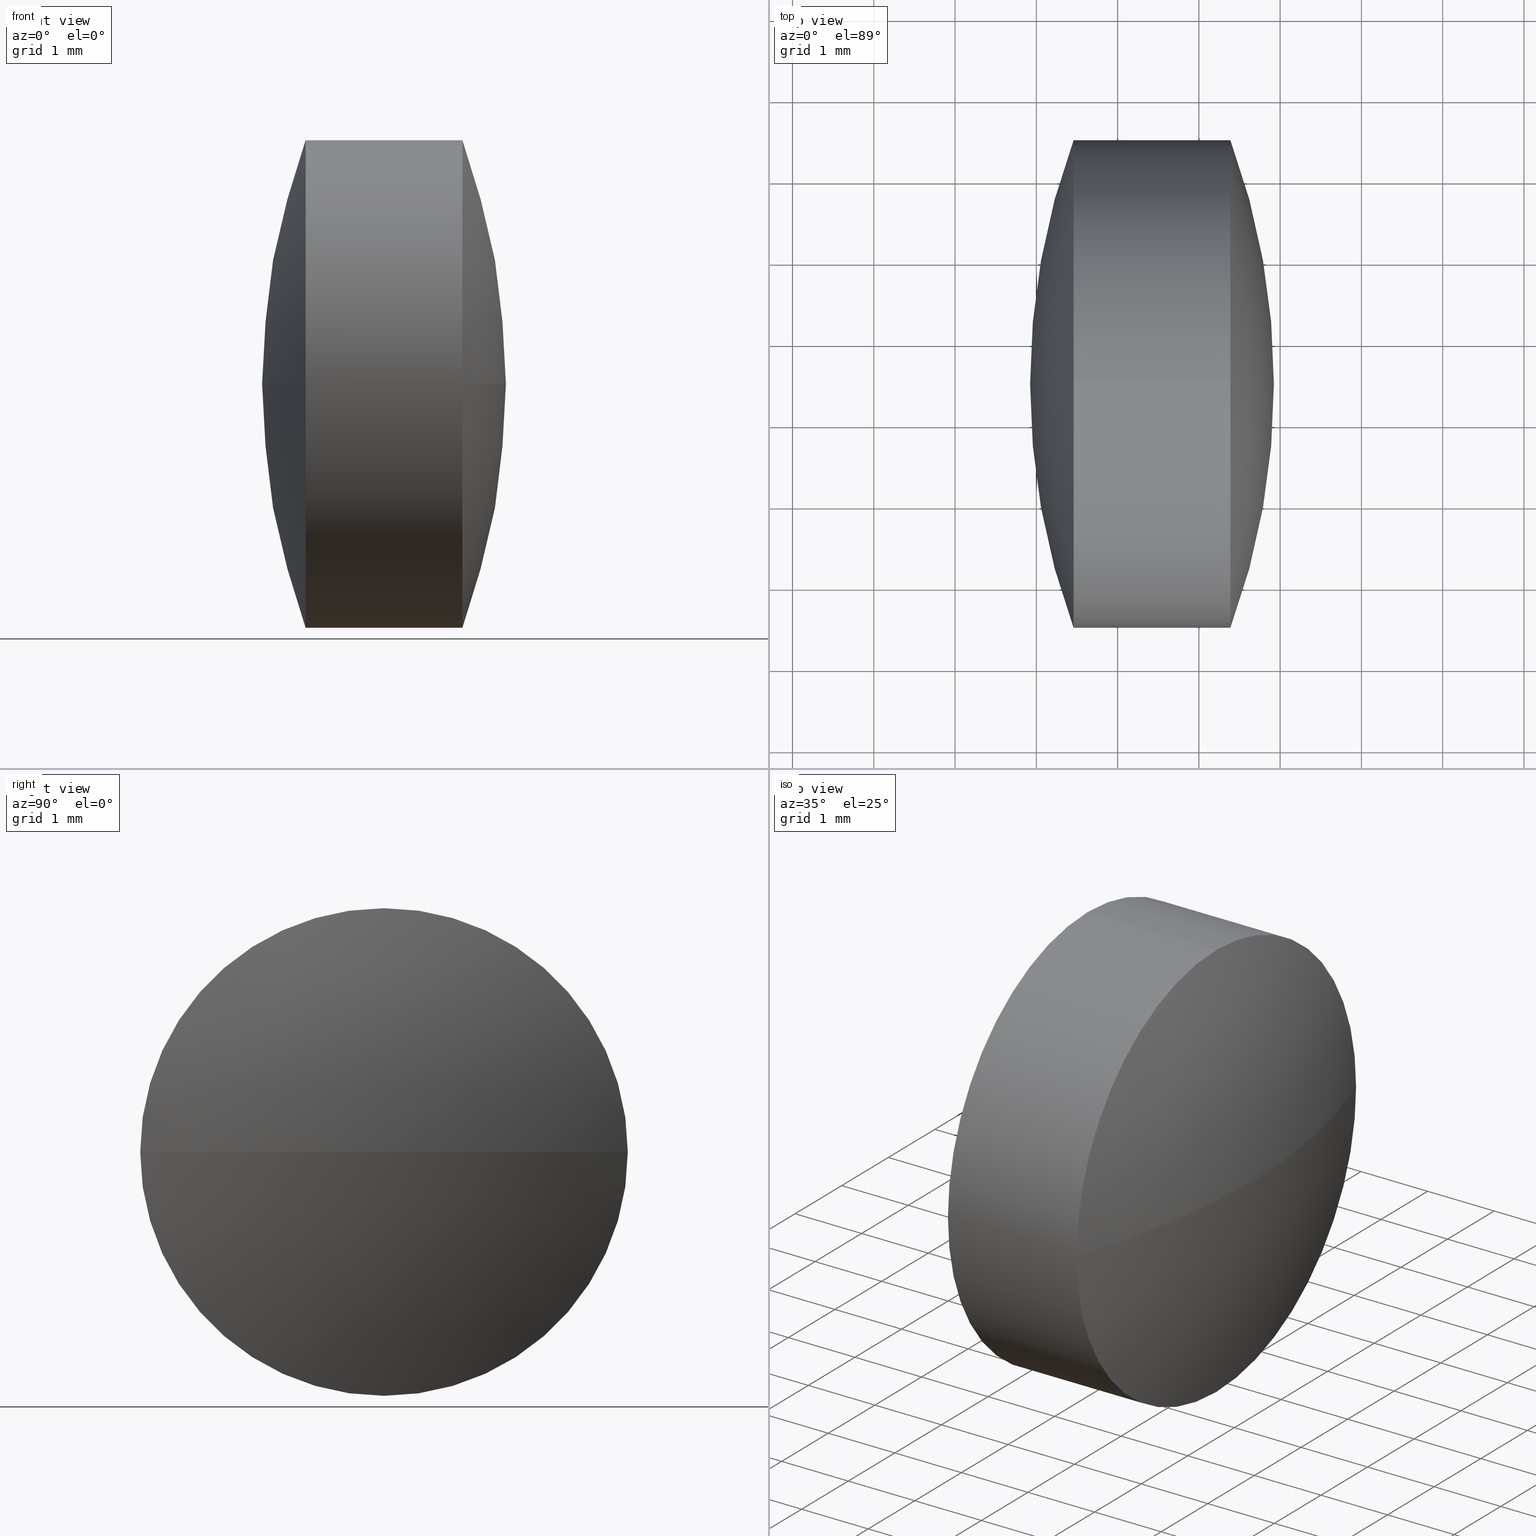
[diagram: canonical four-view strip — front | top / right | iso, engineering-drawing reading convention]
A machine part, canonical four-view strip (front | top / right | iso — engineering-drawing reading convention). The complete STEP part file that produces these views, byte-faithful:
ISO-10303-21;
HEADER;
FILE_DESCRIPTION (( 'STEP AP203' ),
    '1' );
FILE_NAME ('110090.STEP',
    '2019-07-01T08:49:51',
    ( '' ),
    ( '' ),
    'SwSTEP 2.0',
    'SolidWorks 2016',
    '' );
FILE_SCHEMA (( 'CONFIG_CONTROL_DESIGN' ));
ENDSEC;

DATA;
#1 = PERSON_AND_ORGANIZATION ( #89, #333 ) ;
#2 = VERTEX_POINT ( 'NONE', #328 ) ;
#3 = APPROVAL ( #119, 'δָ��' ) ;
#4 = DIRECTION ( 'NONE',  ( -1.000000000000000000, 0.0000000000000000000, 0.0000000000000000000 ) ) ;
#5 = DIRECTION ( 'NONE',  ( 0.0000000000000000000, 0.0000000000000000000, -1.000000000000000000 ) ) ;
#6 = PERSON_AND_ORGANIZATION_ROLE ( 'classification_officer' ) ;
#7 = COORDINATED_UNIVERSAL_TIME_OFFSET ( 8, 0, .AHEAD. ) ;
#8 = DIRECTION ( 'NONE',  ( 0.0000000000000000000, 0.0000000000000000000, 1.000000000000000000 ) ) ;
#9 = APPROVAL ( #273, 'δָ��' ) ;
#10 = DATE_AND_TIME ( #229, #211 ) ;
#11 = ADVANCED_FACE ( 'NONE', ( #139 ), #187, .T. ) ;
#12 = VERTEX_POINT ( 'NONE', #254 ) ;
#13 = EDGE_CURVE ( 'NONE', #79, #2, #341, .T. ) ;
#14 = EDGE_CURVE ( 'NONE', #12, #268, #215, .T. ) ;
#15 = LOCAL_TIME ( 16, 49, 51.00000000000000000, #134 ) ;
#16 = CARTESIAN_POINT ( 'NONE',  ( 21.38819252269869200, 14.48412118657909000, 3.673940397442051500E-016 ) ) ;
#17 = DATE_AND_TIME ( #159, #52 ) ;
#18 = UNCERTAINTY_MEASURE_WITH_UNIT (LENGTH_MEASURE( 1.000000000000000100E-005 ), #227, 'distance_accuracy_value', 'NONE');
#19 = ORIENTED_EDGE ( 'NONE', *, *, #43, .F. ) ;
#20 = CARTESIAN_POINT ( 'NONE',  ( 19.45819823698440500, 11.48412118657908500, 2.999999999999997300 ) ) ;
#21 = AXIS2_PLACEMENT_3D ( 'NONE', #318, #223, #207 ) ;
#22 = CARTESIAN_POINT ( 'NONE',  ( 13.24438487191312900, 11.48412118657909500, 0.0000000000000000000 ) ) ;
#23 = DATE_AND_TIME ( #41, #330 ) ;
#24 = ADVANCED_BREP_SHAPE_REPRESENTATION ( '110090', ( #219, #21 ), #266 ) ;
#25 = LOCAL_TIME ( 16, 49, 51.00000000000000000, #60 ) ;
#26 = MECHANICAL_CONTEXT ( 'NONE', #50, 'mechanical' ) ;
#27 = CARTESIAN_POINT ( 'NONE',  ( 19.45819823698440500, 11.48412118657908500, 0.0000000000000000000 ) ) ;
#28 = VECTOR ( 'NONE', #108, 1000.000000000000000 ) ;
#29 = ORIENTED_EDGE ( 'NONE', *, *, #13, .T. ) ;
#30 = EDGE_CURVE ( 'NONE', #177, #268, #68, .T. ) ;
#31 = APPLICATION_PROTOCOL_DEFINITION ( 'international standard', 'config_control_design', 1994, #63 ) ;
#32 = APPROVAL_STATUS ( 'not_yet_approved' ) ;
#33 = EDGE_CURVE ( 'NONE', #98, #79, #335, .T. ) ;
#34 = PERSON_AND_ORGANIZATION ( #89, #333 ) ;
#35 = ORIENTED_EDGE ( 'NONE', *, *, #338, .F. ) ;
#36 = CC_DESIGN_PERSON_AND_ORGANIZATION_ASSIGNMENT ( #144, #125, ( #129 ) ) ;
#37 = APPROVAL_ROLE ( '' ) ;
#38 = APPROVAL_DATE_TIME ( #114, #113 ) ;
#39 = COORDINATED_UNIVERSAL_TIME_OFFSET ( 8, 0, .AHEAD. ) ;
#40 = PRODUCT_DEFINITION ( 'δ֪', '', #129, #166 ) ;
#41 = CALENDAR_DATE ( 2019, 1, 7 ) ;
#42 = ORIENTED_EDGE ( 'NONE', *, *, #205, .F. ) ;
#43 = EDGE_CURVE ( 'NONE', #268, #321, #210, .T. ) ;
#44 = DIRECTION ( 'NONE',  ( 0.0000000000000000000, -1.224646799147353200E-016, 1.000000000000000000 ) ) ;
#45 = DIRECTION ( 'NONE',  ( -1.000000000000000000, -0.0000000000000000000, -0.0000000000000000000 ) ) ;
#46 = PERSON_AND_ORGANIZATION ( #89, #333 ) ;
#47 = CIRCLE ( 'NONE', #242, 2.999999999999997300 ) ;
#48 = VERTEX_POINT ( 'NONE', #131 ) ;
#49 = CC_DESIGN_APPROVAL ( #269, ( #162 ) ) ;
#50 = APPLICATION_CONTEXT ( 'configuration controlled 3d designs of mechanical parts and assemblies' ) ;
#51 = AXIS2_PLACEMENT_3D ( 'NONE', #192, #244, #245 ) ;
#52 = LOCAL_TIME ( 16, 49, 51.00000000000000000, #101 ) ;
#53 = ORIENTED_EDGE ( 'NONE', *, *, #302, .F. ) ;
#54 = APPLICATION_PROTOCOL_DEFINITION ( 'international standard', 'config_control_design', 1994, #50 ) ;
#55 = DIRECTION ( 'NONE',  ( -1.000000000000000000, -0.0000000000000000000, -0.0000000000000000000 ) ) ;
#56 = CALENDAR_DATE ( 2019, 1, 7 ) ;
#57 = DATE_AND_TIME ( #286, #76 ) ;
#58 = DIRECTION ( 'NONE',  ( -1.000000000000000000, -0.0000000000000000000, -0.0000000000000000000 ) ) ;
#59 = CC_DESIGN_PERSON_AND_ORGANIZATION_ASSIGNMENT ( #264, #174, ( #70 ) ) ;
#60 = COORDINATED_UNIVERSAL_TIME_OFFSET ( 8, 0, .AHEAD. ) ;
#61 = PERSON_AND_ORGANIZATION_ROLE ( 'creator' ) ;
#62 = FACE_OUTER_BOUND ( 'NONE', #147, .T. ) ;
#63 = APPLICATION_CONTEXT ( 'configuration controlled 3d designs of mechanical parts and assemblies' ) ;
#64 = CC_DESIGN_PERSON_AND_ORGANIZATION_ASSIGNMENT ( #72, #198, ( #85 ) ) ;
#65 = APPROVAL_STATUS ( 'not_yet_approved' ) ;
#66 = ADVANCED_FACE ( 'NONE', ( #62 ), #287, .T. ) ;
#67 = APPROVAL_DATE_TIME ( #152, #285 ) ;
#68 = CIRCLE ( 'NONE', #132, 8.678801936499844800 ) ;
#69 = CARTESIAN_POINT ( 'NONE',  ( 17.39494765631539900, 11.48412118657908500, 0.0000000000000000000 ) ) ;
#70 = PRODUCT_DEFINITION_FORMATION_WITH_SPECIFIED_SOURCE ( '�κ�', '', #85, .NOT_KNOWN. ) ;
#71 = DIRECTION ( 'NONE',  ( -1.000000000000000000, -0.0000000000000000000, -0.0000000000000000000 ) ) ;
#72 = PERSON_AND_ORGANIZATION ( #89, #333 ) ;
#73 = ORIENTED_EDGE ( 'NONE', *, *, #30, .T. ) ;
#74 = EDGE_CURVE ( 'NONE', #321, #48, #102, .T. ) ;
#75 = DIRECTION ( 'NONE',  ( 0.0000000000000000000, -1.000000000000000000, -1.224646799147353000E-016 ) ) ;
#76 = LOCAL_TIME ( 16, 49, 51.00000000000000000, #7 ) ;
#77 = CARTESIAN_POINT ( 'NONE',  ( 21.92318680841297200, 11.48412118657909500, 0.0000000000000000000 ) ) ;
#78 = CYLINDRICAL_SURFACE ( 'NONE', #184, 2.999999999999997300 ) ;
#79 = VERTEX_POINT ( 'NONE', #145 ) ;
#80 = CC_DESIGN_PERSON_AND_ORGANIZATION_ASSIGNMENT ( #1, #225, ( #233 ) ) ;
#81 = CARTESIAN_POINT ( 'NONE',  ( 13.24438487191312900, 11.48412118657909500, 0.0000000000000000000 ) ) ;
#82 = APPROVAL_PERSON_ORGANIZATION ( #109, #9, #150 ) ;
#83 = CC_DESIGN_PERSON_AND_ORGANIZATION_ASSIGNMENT ( #120, #320, ( #70 ) ) ;
#84 = CARTESIAN_POINT ( 'NONE',  ( 27.60200588776993100, 11.48412118657908100, 0.0000000000000000000 ) ) ;
#85 = PRODUCT ( '110090', '110090', '', ( #276 ) ) ;
#86 = ORIENTED_EDGE ( 'NONE', *, *, #13, .F. ) ;
#87 = DIRECTION ( 'NONE',  ( -1.000000000000000000, -0.0000000000000000000, -0.0000000000000000000 ) ) ;
#88 = DATE_TIME_ROLE ( 'classification_date' ) ;
#89 = PERSON ( 'δָ��', 'δָ��', 'δָ��', ('δָ��'), ('δָ��'), ('δָ��') ) ;
#90 = ADVANCED_FACE ( 'NONE', ( #164 ), #78, .T. ) ;
#91 =( NAMED_UNIT ( * ) SI_UNIT ( $, .STERADIAN. ) SOLID_ANGLE_UNIT ( ) );
#92 = APPLICATION_PROTOCOL_DEFINITION ( 'international standard', 'config_control_design', 1994, #262 ) ;
#93 = AXIS2_PLACEMENT_3D ( 'NONE', #69, #96, #278 ) ;
#94 = PERSON_AND_ORGANIZATION ( #89, #333 ) ;
#95 = CIRCLE ( 'NONE', #258, 8.678801936499811000 ) ;
#96 = DIRECTION ( 'NONE',  ( -1.000000000000000000, -0.0000000000000000000, -0.0000000000000000000 ) ) ;
#97 = VECTOR ( 'NONE', #218, 1000.000000000000000 ) ;
#98 = VERTEX_POINT ( 'NONE', #263 ) ;
#99 = ADVANCED_FACE ( 'NONE', ( #163 ), #142, .T. ) ;
#100 = CC_DESIGN_PERSON_AND_ORGANIZATION_ASSIGNMENT ( #340, #293, ( #162 ) ) ;
#101 = COORDINATED_UNIVERSAL_TIME_OFFSET ( 8, 0, .AHEAD. ) ;
#102 = CIRCLE ( 'NONE', #123, 2.999999999999997300 ) ;
#103 = CARTESIAN_POINT ( 'NONE',  ( 19.45819823698440500, 11.48412118657908500, 0.0000000000000000000 ) ) ;
#104 = COORDINATED_UNIVERSAL_TIME_OFFSET ( 8, 0, .AHEAD. ) ;
#105 = ORIENTED_EDGE ( 'NONE', *, *, #323, .T. ) ;
#106 = CARTESIAN_POINT ( 'NONE',  ( 13.24438487191312900, 11.48412118657909500, 0.0000000000000000000 ) ) ;
#107 = AXIS2_PLACEMENT_3D ( 'NONE', #22, #188, #141 ) ;
#108 = DIRECTION ( 'NONE',  ( -1.000000000000000000, -0.0000000000000000000, -0.0000000000000000000 ) ) ;
#109 = PERSON_AND_ORGANIZATION ( #89, #333 ) ;
#110 = AXIS2_PLACEMENT_3D ( 'NONE', #259, #45, #183 ) ;
#111 = DIRECTION ( 'NONE',  ( -0.0000000000000000000, 0.0000000000000000000, -1.000000000000000000 ) ) ;
#112 = DIRECTION ( 'NONE',  ( 0.0000000000000000000, 1.000000000000000000, 0.0000000000000000000 ) ) ;
#113 = APPROVAL ( #204, 'δָ��' ) ;
#114 = DATE_AND_TIME ( #186, #253 ) ;
#115 = DIRECTION ( 'NONE',  ( -0.0000000000000000000, 0.0000000000000000000, 1.000000000000000000 ) ) ;
#116 = LOCAL_TIME ( 16, 49, 51.00000000000000000, #39 ) ;
#117 = ORIENTED_EDGE ( 'NONE', *, *, #235, .F. ) ;
#118 = CC_DESIGN_PERSON_AND_ORGANIZATION_ASSIGNMENT ( #94, #6, ( #232 ) ) ;
#119 = APPROVAL_STATUS ( 'not_yet_approved' ) ;
#120 = PERSON_AND_ORGANIZATION ( #89, #333 ) ;
#121 = ORIENTED_EDGE ( 'NONE', *, *, #323, .F. ) ;
#122 = APPLICATION_CONTEXT ( 'configuration controlled 3d designs of mechanical parts and assemblies' ) ;
#123 = AXIS2_PLACEMENT_3D ( 'NONE', #311, #339, #240 ) ;
#124 = APPLICATION_PROTOCOL_DEFINITION ( 'international standard', 'config_control_design', 1994, #122 ) ;
#125 = PERSON_AND_ORGANIZATION_ROLE ( 'design_supplier' ) ;
#126 = ADVANCED_FACE ( 'NONE', ( #230 ), #168, .T. ) ;
#127 = PERSON_AND_ORGANIZATION ( #89, #333 ) ;
#128 = EDGE_LOOP ( 'NONE', ( #185, #303, #136, #121, #117, #241 ) ) ;
#129 = PRODUCT_DEFINITION_FORMATION_WITH_SPECIFIED_SOURCE ( '�κ�', '', #233, .NOT_KNOWN. ) ;
#130 = CARTESIAN_POINT ( 'NONE',  ( 21.38819252269869200, 11.48412118657908500, 0.0000000000000000000 ) ) ;
#131 = CARTESIAN_POINT ( 'NONE',  ( 21.38819252269869200, 8.484121186579091800, 0.0000000000000000000 ) ) ;
#132 = AXIS2_PLACEMENT_3D ( 'NONE', #334, #44, #75 ) ;
#133 = DIRECTION ( 'NONE',  ( 0.0000000000000000000, 0.0000000000000000000, 1.000000000000000000 ) ) ;
#134 = COORDINATED_UNIVERSAL_TIME_OFFSET ( 8, 0, .AHEAD. ) ;
#135 = PERSON_AND_ORGANIZATION ( #89, #333 ) ;
#136 = ORIENTED_EDGE ( 'NONE', *, *, #33, .F. ) ;
#137 = CARTESIAN_POINT ( 'NONE',  ( 17.39494765631539900, 11.48412118657908500, 0.0000000000000000000 ) ) ;
#138 = APPROVAL_PERSON_ORGANIZATION ( #135, #143, #199 ) ;
#139 = FACE_OUTER_BOUND ( 'NONE', #315, .T. ) ;
#140 = CC_DESIGN_DATE_AND_TIME_ASSIGNMENT ( #237, #274, ( #162 ) ) ;
#141 = DIRECTION ( 'NONE',  ( 0.0000000000000000000, -1.000000000000000000, 0.0000000000000000000 ) ) ;
#142 = SPHERICAL_SURFACE ( 'NONE', #151, 8.678801936499844800 ) ;
#143 = APPROVAL ( #32, 'δָ��' ) ;
#144 = PERSON_AND_ORGANIZATION ( #89, #333 ) ;
#145 = CARTESIAN_POINT ( 'NONE',  ( 19.45819823698440500, 11.48412118657908500, -2.999999999999997300 ) ) ;
#146 = PERSON_AND_ORGANIZATION_ROLE ( 'creator' ) ;
#147 = EDGE_LOOP ( 'NONE', ( #194, #239, #105, #305 ) ) ;
#148 = AXIS2_PLACEMENT_3D ( 'NONE', #84, #111, #112 ) ;
#149 = APPROVAL_ROLE ( '' ) ;
#150 = APPROVAL_ROLE ( '' ) ;
#151 = AXIS2_PLACEMENT_3D ( 'NONE', #106, #306, #161 ) ;
#152 = DATE_AND_TIME ( #344, #167 ) ;
#153 = SHAPE_DEFINITION_REPRESENTATION ( #284, #24 ) ;
#154 = DIRECTION ( 'NONE',  ( 0.0000000000000000000, 0.0000000000000000000, 1.000000000000000000 ) ) ;
#155 = APPROVAL_DATE_TIME ( #57, #143 ) ;
#156 = ORIENTED_EDGE ( 'NONE', *, *, #74, .F. ) ;
#157 = PRODUCT_RELATED_PRODUCT_CATEGORY ( 'detail', '', ( #233 ) ) ;
#158 = AXIS2_PLACEMENT_3D ( 'NONE', #103, #331, #133 ) ;
#159 = CALENDAR_DATE ( 2019, 1, 7 ) ;
#160 = PERSON_AND_ORGANIZATION ( #89, #333 ) ;
#161 = DIRECTION ( 'NONE',  ( 0.0000000000000000000, -1.000000000000000000, 0.0000000000000000000 ) ) ;
#162 = SECURITY_CLASSIFICATION ( '', '', #249 ) ;
#163 = FACE_OUTER_BOUND ( 'NONE', #231, .T. ) ;
#164 = FACE_OUTER_BOUND ( 'NONE', #128, .T. ) ;
#165 = DIRECTION ( 'NONE',  ( 0.0000000000000000000, 0.0000000000000000000, 1.000000000000000000 ) ) ;
#166 = DESIGN_CONTEXT ( 'detailed design', #122, 'design' ) ;
#167 = LOCAL_TIME ( 16, 49, 51.00000000000000000, #228 ) ;
#168 = SPHERICAL_SURFACE ( 'NONE', #107, 8.678801936499844800 ) ;
#169 = CARTESIAN_POINT ( 'NONE',  ( 0.0000000000000000000, 0.0000000000000000000, 0.0000000000000000000 ) ) ;
#170 = CC_DESIGN_APPROVAL ( #143, ( #129 ) ) ;
#171 = APPROVAL_DATE_TIME ( #246, #3 ) ;
#172 = VERTEX_POINT ( 'NONE', #20 ) ;
#173 = PRODUCT_DEFINITION ( 'δ֪', '', #70, #243 ) ;
#174 = PERSON_AND_ORGANIZATION_ROLE ( 'design_supplier' ) ;
#175 = COORDINATED_UNIVERSAL_TIME_OFFSET ( 8, 0, .AHEAD. ) ;
#176 = SECURITY_CLASSIFICATION_LEVEL ( 'unclassified' ) ;
#177 = VERTEX_POINT ( 'NONE', #77 ) ;
#178 = AXIS2_PLACEMENT_3D ( 'NONE', #130, #71, #197 ) ;
#179 = APPROVAL_DATE_TIME ( #309, #269 ) ;
#180 = PERSON_AND_ORGANIZATION ( #89, #333 ) ;
#181 = ORIENTED_EDGE ( 'NONE', *, *, #74, .T. ) ;
#182 = CC_DESIGN_APPROVAL ( #285, ( #173 ) ) ;
#183 = DIRECTION ( 'NONE',  ( 0.0000000000000000000, 0.0000000000000000000, 1.000000000000000000 ) ) ;
#184 = AXIS2_PLACEMENT_3D ( 'NONE', #137, #342, #165 ) ;
#185 = ORIENTED_EDGE ( 'NONE', *, *, #43, .T. ) ;
#186 = CALENDAR_DATE ( 2019, 1, 7 ) ;
#187 = CYLINDRICAL_SURFACE ( 'NONE', #93, 2.999999999999997300 ) ;
#188 = DIRECTION ( 'NONE',  ( 0.0000000000000000000, 0.0000000000000000000, 1.000000000000000000 ) ) ;
#189 = CLOSED_SHELL ( 'NONE', ( #90, #126, #275, #66, #99, #11 ) ) ;
#190 = AXIS2_PLACEMENT_3D ( 'NONE', #329, #234, #255 ) ;
#191 = CARTESIAN_POINT ( 'NONE',  ( 21.38819252269869200, 11.48412118657908500, -2.999999999999997300 ) ) ;
#192 = CARTESIAN_POINT ( 'NONE',  ( 27.60200588776993100, 11.48412118657908100, 0.0000000000000000000 ) ) ;
#193 = DIRECTION ( 'NONE',  ( 0.0000000000000000000, 0.0000000000000000000, 1.000000000000000000 ) ) ;
#194 = ORIENTED_EDGE ( 'NONE', *, *, #298, .F. ) ;
#195 = CARTESIAN_POINT ( 'NONE',  ( 27.60200588776993100, 11.48412118657908100, 0.0000000000000000000 ) ) ;
#196 = CC_DESIGN_PERSON_AND_ORGANIZATION_ASSIGNMENT ( #127, #61, ( #173 ) ) ;
#197 = DIRECTION ( 'NONE',  ( 0.0000000000000000000, 0.0000000000000000000, 1.000000000000000000 ) ) ;
#198 = PERSON_AND_ORGANIZATION_ROLE ( 'design_owner' ) ;
#199 = APPROVAL_ROLE ( '' ) ;
#200 = DATE_AND_TIME ( #56, #15 ) ;
#201 = AXIS2_PLACEMENT_3D ( 'NONE', #313, #55, #288 ) ;
#202 = ORIENTED_EDGE ( 'NONE', *, *, #33, .T. ) ;
#203 = APPROVAL_ROLE ( '' ) ;
#204 = APPROVAL_STATUS ( 'not_yet_approved' ) ;
#205 = EDGE_CURVE ( 'NONE', #321, #79, #345, .T. ) ;
#206 = PRODUCT_DEFINITION_SHAPE ( 'NONE', 'NONE',  #40 ) ;
#207 = DIRECTION ( 'NONE',  ( 1.000000000000000000, 0.0000000000000000000, 0.0000000000000000000 ) ) ;
#208 = APPROVAL_DATE_TIME ( #23, #9 ) ;
#209 = APPROVAL_PERSON_ORGANIZATION ( #212, #3, #203 ) ;
#210 = CIRCLE ( 'NONE', #110, 2.999999999999997300 ) ;
#211 = LOCAL_TIME ( 16, 49, 51.00000000000000000, #104 ) ;
#212 = PERSON_AND_ORGANIZATION ( #89, #333 ) ;
#213 = CARTESIAN_POINT ( 'NONE',  ( 17.39494765631539900, 11.48412118657908500, 2.999999999999997300 ) ) ;
#214 = CC_DESIGN_DATE_AND_TIME_ASSIGNMENT ( #17, #250, ( #173 ) ) ;
#215 = CIRCLE ( 'NONE', #178, 2.999999999999997300 ) ;
#216 = AXIS2_PLACEMENT_3D ( 'NONE', #81, #5, #4 ) ;
#217 = DIRECTION ( 'NONE',  ( 1.000000000000000000, 0.0000000000000000000, 0.0000000000000000000 ) ) ;
#218 = DIRECTION ( 'NONE',  ( -1.000000000000000000, -0.0000000000000000000, -0.0000000000000000000 ) ) ;
#219 = MANIFOLD_SOLID_BREP ( '��ת1', #189 ) ;
#220 = AXIS2_PLACEMENT_3D ( 'NONE', #299, #87, #154 ) ;
#221 = CIRCLE ( 'NONE', #201, 2.999999999999997300 ) ;
#222 = DIRECTION ( 'NONE',  ( -1.000000000000000000, -0.0000000000000000000, -0.0000000000000000000 ) ) ;
#223 = DIRECTION ( 'NONE',  ( 0.0000000000000000000, 0.0000000000000000000, 1.000000000000000000 ) ) ;
#224 = ORIENTED_EDGE ( 'NONE', *, *, #343, .F. ) ;
#225 = PERSON_AND_ORGANIZATION_ROLE ( 'design_owner' ) ;
#226 = CC_DESIGN_PERSON_AND_ORGANIZATION_ASSIGNMENT ( #180, #146, ( #40 ) ) ;
#227 =( LENGTH_UNIT ( ) NAMED_UNIT ( * ) SI_UNIT ( .MILLI., .METRE. ) );
#228 = COORDINATED_UNIVERSAL_TIME_OFFSET ( 8, 0, .AHEAD. ) ;
#229 = CALENDAR_DATE ( 2019, 1, 7 ) ;
#230 = FACE_OUTER_BOUND ( 'NONE', #327, .T. ) ;
#231 = EDGE_LOOP ( 'NONE', ( #271, #247, #156, #19 ) ) ;
#232 = SECURITY_CLASSIFICATION ( '', '', #176 ) ;
#233 = PRODUCT ( '110090', '110090', '', ( #26 ) ) ;
#234 = DIRECTION ( 'NONE',  ( -0.0000000000000000000, 0.0000000000000000000, -1.000000000000000000 ) ) ;
#235 = EDGE_CURVE ( 'NONE', #12, #172, #277, .T. ) ;
#236 = LOCAL_TIME ( 16, 49, 51.00000000000000000, #332 ) ;
#237 = DATE_AND_TIME ( #296, #25 ) ;
#238 = CIRCLE ( 'NONE', #51, 8.678801936499811000 ) ;
#239 = ORIENTED_EDGE ( 'NONE', *, *, #282, .T. ) ;
#240 = DIRECTION ( 'NONE',  ( 0.0000000000000000000, 0.0000000000000000000, 1.000000000000000000 ) ) ;
#241 = ORIENTED_EDGE ( 'NONE', *, *, #14, .T. ) ;
#242 = AXIS2_PLACEMENT_3D ( 'NONE', #317, #58, #193 ) ;
#243 = DESIGN_CONTEXT ( 'detailed design', #63, 'design' ) ;
#244 = DIRECTION ( 'NONE',  ( 0.0000000000000000000, 1.224646799147353200E-016, -1.000000000000000000 ) ) ;
#245 = DIRECTION ( 'NONE',  ( 0.0000000000000000000, 1.000000000000000000, 1.224646799147353000E-016 ) ) ;
#246 = DATE_AND_TIME ( #304, #116 ) ;
#247 = ORIENTED_EDGE ( 'NONE', *, *, #343, .T. ) ;
#248 = CC_DESIGN_SECURITY_CLASSIFICATION ( #232, ( #70 ) ) ;
#249 = SECURITY_CLASSIFICATION_LEVEL ( 'unclassified' ) ;
#250 = DATE_TIME_ROLE ( 'creation_date' ) ;
#251 = AXIS2_PLACEMENT_3D ( 'NONE', #27, #222, #289 ) ;
#252 = EDGE_LOOP ( 'NONE', ( #202, #29, #256, #35 ) ) ;
#253 = LOCAL_TIME ( 16, 49, 51.00000000000000000, #314 ) ;
#254 = CARTESIAN_POINT ( 'NONE',  ( 21.38819252269869200, 11.48412118657908500, 2.999999999999997300 ) ) ;
#255 = DIRECTION ( 'NONE',  ( 0.0000000000000000000, 1.000000000000000000, 0.0000000000000000000 ) ) ;
#256 = ORIENTED_EDGE ( 'NONE', *, *, #298, .T. ) ;
#257 = CC_DESIGN_DATE_AND_TIME_ASSIGNMENT ( #10, #294, ( #40 ) ) ;
#258 = AXIS2_PLACEMENT_3D ( 'NONE', #195, #115, #290 ) ;
#259 = CARTESIAN_POINT ( 'NONE',  ( 21.38819252269869200, 11.48412118657908500, 0.0000000000000000000 ) ) ;
#260 = VERTEX_POINT ( 'NONE', #336 ) ;
#261 = PRODUCT_RELATED_PRODUCT_CATEGORY ( 'detail', '', ( #85 ) ) ;
#262 = APPLICATION_CONTEXT ( 'configuration controlled 3d designs of mechanical parts and assemblies' ) ;
#263 = CARTESIAN_POINT ( 'NONE',  ( 19.45819823698440100, 14.48412118657908100, 0.0000000000000000000 ) ) ;
#264 = PERSON_AND_ORGANIZATION ( #89, #333 ) ;
#265 = ORIENTED_EDGE ( 'NONE', *, *, #235, .T. ) ;
#266 =( GEOMETRIC_REPRESENTATION_CONTEXT ( 3 ) GLOBAL_UNCERTAINTY_ASSIGNED_CONTEXT ( ( #18 ) ) GLOBAL_UNIT_ASSIGNED_CONTEXT ( ( #227, #322, #91 ) ) REPRESENTATION_CONTEXT ( 'NONE', 'WORKASPACE' ) );
#267 = APPROVAL_PERSON_ORGANIZATION ( #34, #285, #149 ) ;
#268 = VERTEX_POINT ( 'NONE', #16 ) ;
#269 = APPROVAL ( #319, 'δָ��' ) ;
#270 = CIRCLE ( 'NONE', #216, 8.678801936499844800 ) ;
#271 = ORIENTED_EDGE ( 'NONE', *, *, #30, .F. ) ;
#272 = CC_DESIGN_SECURITY_CLASSIFICATION ( #162, ( #129 ) ) ;
#273 = APPROVAL_STATUS ( 'not_yet_approved' ) ;
#274 = DATE_TIME_ROLE ( 'classification_date' ) ;
#275 = ADVANCED_FACE ( 'NONE', ( #291 ), #326, .T. ) ;
#276 = MECHANICAL_CONTEXT ( 'NONE', #262, 'mechanical' ) ;
#277 = LINE ( 'NONE', #213, #28 ) ;
#278 = DIRECTION ( 'NONE',  ( 0.0000000000000000000, 0.0000000000000000000, 1.000000000000000000 ) ) ;
#279 = CC_DESIGN_APPROVAL ( #3, ( #40 ) ) ;
#280 = PERSON_AND_ORGANIZATION ( #89, #333 ) ;
#281 = ORIENTED_EDGE ( 'NONE', *, *, #14, .F. ) ;
#282 = EDGE_CURVE ( 'NONE', #2, #172, #47, .T. ) ;
#283 = APPROVAL_PERSON_ORGANIZATION ( #160, #269, #297 ) ;
#284 = PRODUCT_DEFINITION_SHAPE ( 'NONE', 'NONE',  #173 ) ;
#285 = APPROVAL ( #65, 'δָ��' ) ;
#286 = CALENDAR_DATE ( 2019, 1, 7 ) ;
#287 = SPHERICAL_SURFACE ( 'NONE', #190, 8.678801936499809200 ) ;
#288 = DIRECTION ( 'NONE',  ( 0.0000000000000000000, 0.0000000000000000000, 1.000000000000000000 ) ) ;
#289 = DIRECTION ( 'NONE',  ( 0.0000000000000000000, 0.0000000000000000000, 1.000000000000000000 ) ) ;
#290 = DIRECTION ( 'NONE',  ( 1.000000000000000000, 0.0000000000000000000, 0.0000000000000000000 ) ) ;
#291 = FACE_OUTER_BOUND ( 'NONE', #252, .T. ) ;
#292 = ORIENTED_EDGE ( 'NONE', *, *, #282, .F. ) ;
#293 = PERSON_AND_ORGANIZATION_ROLE ( 'classification_officer' ) ;
#294 = DATE_TIME_ROLE ( 'creation_date' ) ;
#295 = CALENDAR_DATE ( 2019, 1, 7 ) ;
#296 = CALENDAR_DATE ( 2019, 1, 7 ) ;
#297 = APPROVAL_ROLE ( '' ) ;
#298 = EDGE_CURVE ( 'NONE', #2, #260, #238, .T. ) ;
#299 = CARTESIAN_POINT ( 'NONE',  ( 19.45819823698440500, 11.48412118657908500, 0.0000000000000000000 ) ) ;
#300 = CC_DESIGN_DATE_AND_TIME_ASSIGNMENT ( #200, #88, ( #232 ) ) ;
#301 = CIRCLE ( 'NONE', #251, 2.999999999999997300 ) ;
#302 = EDGE_CURVE ( 'NONE', #48, #12, #221, .T. ) ;
#303 = ORIENTED_EDGE ( 'NONE', *, *, #205, .T. ) ;
#304 = CALENDAR_DATE ( 2019, 1, 7 ) ;
#305 = ORIENTED_EDGE ( 'NONE', *, *, #338, .T. ) ;
#306 = DIRECTION ( 'NONE',  ( 0.0000000000000000000, 0.0000000000000000000, 1.000000000000000000 ) ) ;
#307 = CC_DESIGN_PERSON_AND_ORGANIZATION_ASSIGNMENT ( #280, #324, ( #129 ) ) ;
#308 = CARTESIAN_POINT ( 'NONE',  ( 17.39494765631539900, 11.48412118657908500, -2.999999999999997300 ) ) ;
#309 = DATE_AND_TIME ( #295, #236 ) ;
#310 = AXIS2_PLACEMENT_3D ( 'NONE', #169, #8, #217 ) ;
#311 = CARTESIAN_POINT ( 'NONE',  ( 21.38819252269869200, 11.48412118657908500, 0.0000000000000000000 ) ) ;
#312 = ORIENTED_EDGE ( 'NONE', *, *, #302, .T. ) ;
#313 = CARTESIAN_POINT ( 'NONE',  ( 21.38819252269869200, 11.48412118657908500, 0.0000000000000000000 ) ) ;
#314 = COORDINATED_UNIVERSAL_TIME_OFFSET ( 8, 0, .AHEAD. ) ;
#315 = EDGE_LOOP ( 'NONE', ( #42, #181, #312, #265, #292, #86 ) ) ;
#316 = CC_DESIGN_APPROVAL ( #113, ( #232 ) ) ;
#317 = CARTESIAN_POINT ( 'NONE',  ( 19.45819823698440500, 11.48412118657908500, 0.0000000000000000000 ) ) ;
#318 = CARTESIAN_POINT ( 'NONE',  ( 0.0000000000000000000, 0.0000000000000000000, 0.0000000000000000000 ) ) ;
#319 = APPROVAL_STATUS ( 'not_yet_approved' ) ;
#320 = PERSON_AND_ORGANIZATION_ROLE ( 'creator' ) ;
#321 = VERTEX_POINT ( 'NONE', #191 ) ;
#322 =( NAMED_UNIT ( * ) PLANE_ANGLE_UNIT ( ) SI_UNIT ( $, .RADIAN. ) );
#323 = EDGE_CURVE ( 'NONE', #172, #98, #301, .T. ) ;
#324 = PERSON_AND_ORGANIZATION_ROLE ( 'creator' ) ;
#325 = APPROVAL_PERSON_ORGANIZATION ( #46, #113, #37 ) ;
#326 = SPHERICAL_SURFACE ( 'NONE', #148, 8.678801936499809200 ) ;
#327 = EDGE_LOOP ( 'NONE', ( #224, #73, #281, #53 ) ) ;
#328 = CARTESIAN_POINT ( 'NONE',  ( 19.45819823698440100, 8.484121186579086400, -3.673940397442054400E-016 ) ) ;
#329 = CARTESIAN_POINT ( 'NONE',  ( 27.60200588776993100, 11.48412118657908100, 0.0000000000000000000 ) ) ;
#330 = LOCAL_TIME ( 16, 49, 51.00000000000000000, #175 ) ;
#331 = DIRECTION ( 'NONE',  ( -1.000000000000000000, -0.0000000000000000000, -0.0000000000000000000 ) ) ;
#332 = COORDINATED_UNIVERSAL_TIME_OFFSET ( 8, 0, .AHEAD. ) ;
#333 = ORGANIZATION ( 'δָ��', 'δָ��', '' ) ;
#334 = CARTESIAN_POINT ( 'NONE',  ( 13.24438487191312900, 11.48412118657909500, 0.0000000000000000000 ) ) ;
#335 = CIRCLE ( 'NONE', #158, 2.999999999999997300 ) ;
#336 = CARTESIAN_POINT ( 'NONE',  ( 18.92320395127011800, 11.48412118657908100, 0.0000000000000000000 ) ) ;
#337 = CC_DESIGN_APPROVAL ( #9, ( #70 ) ) ;
#338 = EDGE_CURVE ( 'NONE', #98, #260, #95, .T. ) ;
#339 = DIRECTION ( 'NONE',  ( -1.000000000000000000, -0.0000000000000000000, -0.0000000000000000000 ) ) ;
#340 = PERSON_AND_ORGANIZATION ( #89, #333 ) ;
#341 = CIRCLE ( 'NONE', #220, 2.999999999999997300 ) ;
#342 = DIRECTION ( 'NONE',  ( -1.000000000000000000, -0.0000000000000000000, -0.0000000000000000000 ) ) ;
#343 = EDGE_CURVE ( 'NONE', #177, #48, #270, .T. ) ;
#344 = CALENDAR_DATE ( 2019, 1, 7 ) ;
#345 = LINE ( 'NONE', #308, #97 ) ;
ENDSEC;
END-ISO-10303-21;
